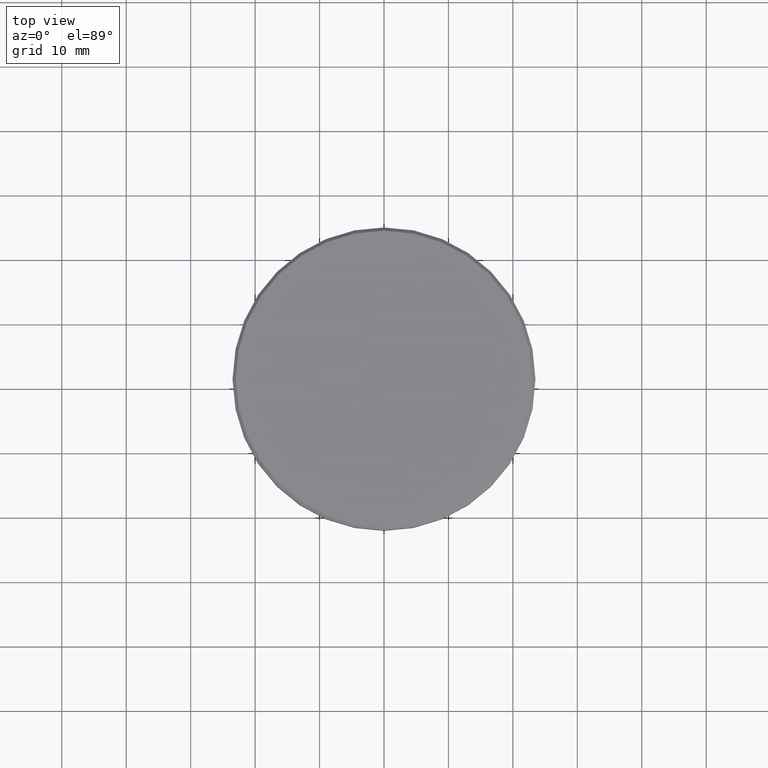
[diagram: clean part render]
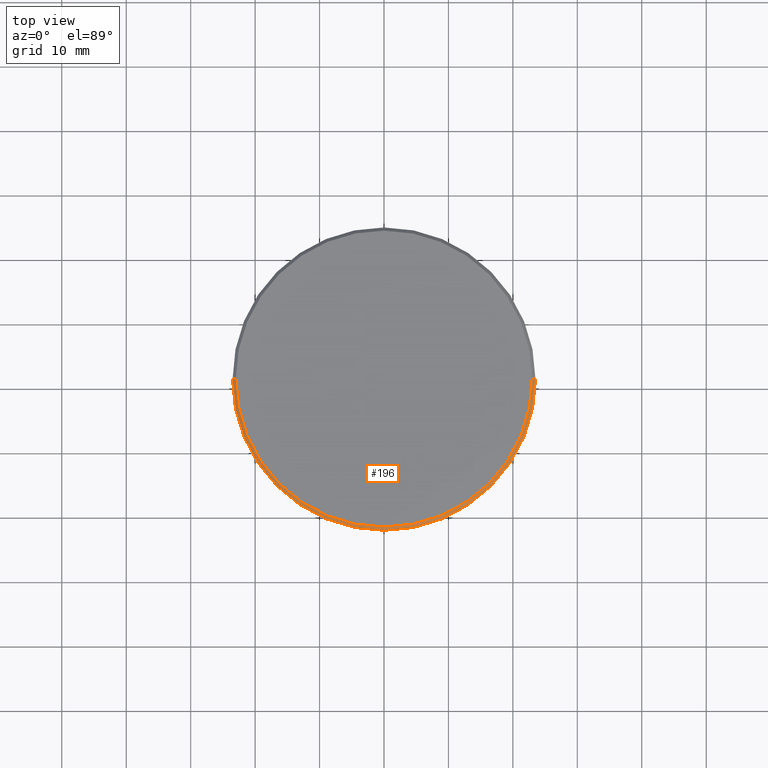
[diagram: same view with one face highlighted and labeled with its STEP entity id]
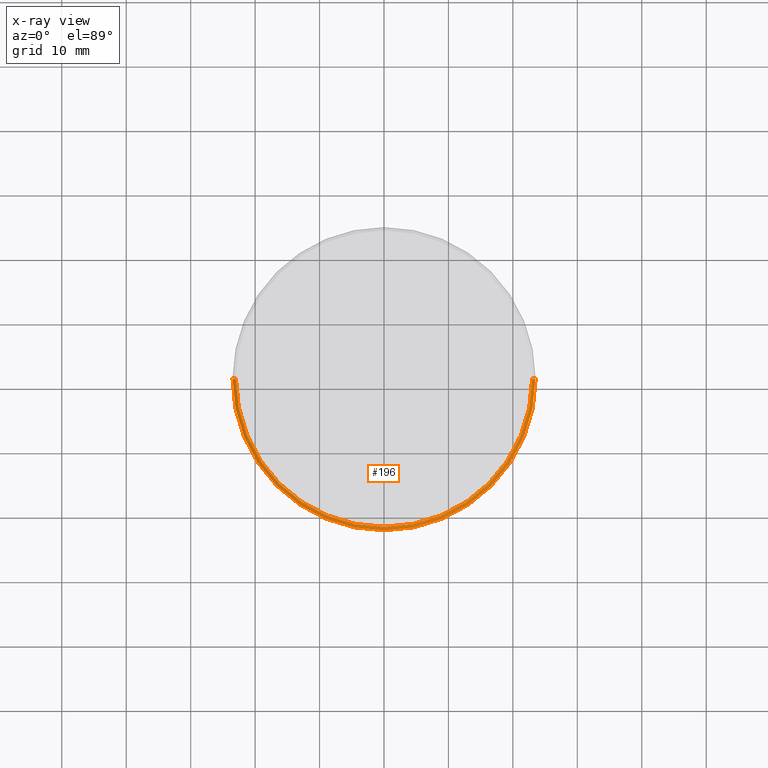
[diagram: x-ray of the same camera — body ghosted, the highlighted face saturated]
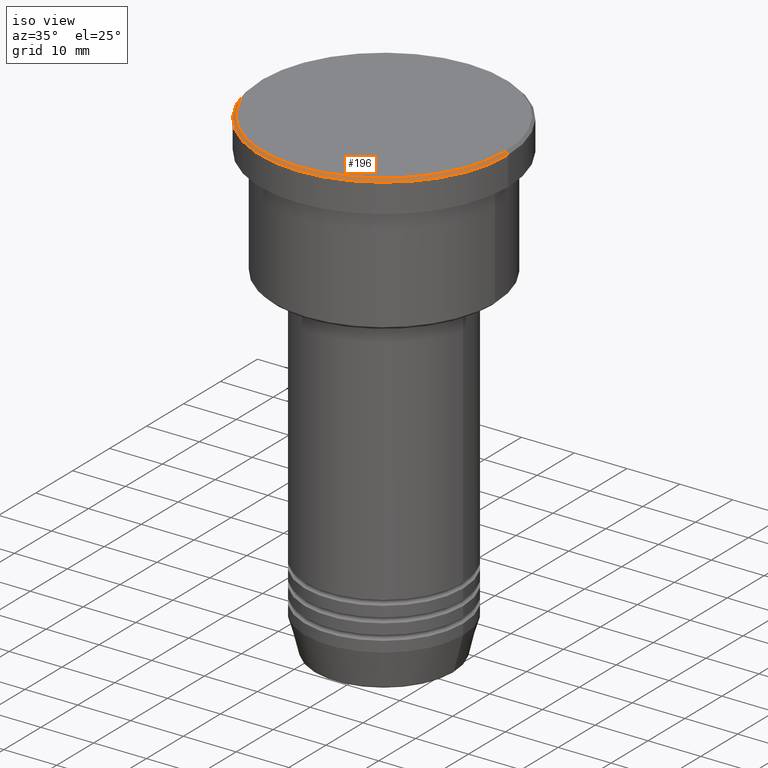
[diagram: same view with one face highlighted and labeled with its STEP entity id]
A machine part, top view. The second image highlights one B-rep face of the part: STEP entity #196.
The next image is the same camera in x-ray: the body ghosted, the highlighted face saturated — about 0% of this face is hidden behind the body in this view.
A second angle (iso view) of the same face is appended — the face is thin or edge-on in the first view.
In plain terms, the highlighted conical surface has half-angle 45 deg.
Its self-contained STEP definition (entity closure, byte-faithful):
#69 = DIRECTION ( 'NONE',  ( 0.7071067811865302533, 8.659560562354722084E-17, -0.7071067811865647812 ) ) ;
#84 = EDGE_LOOP ( 'NONE', ( #945, #280, #954, #723 ) ) ;
#137 = CARTESIAN_POINT ( 'NONE',  ( 0.000000000000000000, 0.000000000000000000, 0.000000000000000000 ) ) ;
#196 = ADVANCED_FACE ( 'NONE', ( #383 ), #642, .T. ) ;
#224 = DIRECTION ( 'NONE',  ( -0.7071067811865302533, 0.000000000000000000, -0.7071067811865647812 ) ) ;
#280 = ORIENTED_EDGE ( 'NONE', *, *, #1015, .F. ) ;
#294 = CARTESIAN_POINT ( 'NONE',  ( 0.000000000000000000, 0.000000000000000000, 0.000000000000000000 ) ) ;
#352 = DIRECTION ( 'NONE',  ( 1.000000000000000000, 0.000000000000000000, 0.000000000000000000 ) ) ;
#362 = CARTESIAN_POINT ( 'NONE',  ( -23.00000000000003908, 0.000000000000000000, 0.000000000000000000 ) ) ;
#371 = CARTESIAN_POINT ( 'NONE',  ( -23.50000000000000000, 2.877919977996280320E-15, -0.4999999999999865663 ) ) ;
#383 = FACE_OUTER_BOUND ( 'NONE', #84, .T. ) ;
#459 = EDGE_CURVE ( 'NONE', #510, #484, #557, .T. ) ;
#464 = DIRECTION ( 'NONE',  ( 0.000000000000000000, 0.000000000000000000, -1.000000000000000000 ) ) ;
#484 = VERTEX_POINT ( 'NONE', #371 ) ;
#510 = VERTEX_POINT ( 'NONE', #1069 ) ;
#516 = AXIS2_PLACEMENT_3D ( 'NONE', #294, #1141, #672 ) ;
#545 = VERTEX_POINT ( 'NONE', #362 ) ;
#557 = CIRCLE ( 'NONE', #643, 23.50000000000000000 ) ;
#573 = AXIS2_PLACEMENT_3D ( 'NONE', #137, #601, #961 ) ;
#601 = DIRECTION ( 'NONE',  ( -0.000000000000000000, -0.000000000000000000, 1.000000000000000000 ) ) ;
#642 = CONICAL_SURFACE ( 'NONE', #516, 23.00000000000003908, 0.7853981633974239651 ) ;
#643 = AXIS2_PLACEMENT_3D ( 'NONE', #808, #464, #352 ) ;
#672 = DIRECTION ( 'NONE',  ( -1.000000000000000000, 0.000000000000000000, 0.000000000000000000 ) ) ;
#723 = ORIENTED_EDGE ( 'NONE', *, *, #459, .F. ) ;
#747 = VECTOR ( 'NONE', #224, 1000.000000000000114 ) ;
#808 = CARTESIAN_POINT ( 'NONE',  ( 0.000000000000000000, 0.000000000000000000, -0.4999999999999865663 ) ) ;
#810 = CARTESIAN_POINT ( 'NONE',  ( 23.00000000000003908, 2.816687638038917085E-15, 0.000000000000000000 ) ) ;
#824 = CARTESIAN_POINT ( 'NONE',  ( 23.00000000000003908, 2.847303808017598505E-15, 0.000000000000000000 ) ) ;
#830 = EDGE_CURVE ( 'NONE', #1078, #510, #1168, .T. ) ;
#920 = VECTOR ( 'NONE', #69, 1000.000000000000114 ) ;
#945 = ORIENTED_EDGE ( 'NONE', *, *, #830, .F. ) ;
#952 = CARTESIAN_POINT ( 'NONE',  ( -23.00000000000003908, 0.000000000000000000, 0.000000000000000000 ) ) ;
#954 = ORIENTED_EDGE ( 'NONE', *, *, #1013, .T. ) ;
#961 = DIRECTION ( 'NONE',  ( 1.000000000000000000, 0.000000000000000000, 0.000000000000000000 ) ) ;
#1013 = EDGE_CURVE ( 'NONE', #545, #484, #1132, .T. ) ;
#1015 = EDGE_CURVE ( 'NONE', #545, #1078, #1171, .T. ) ;
#1069 = CARTESIAN_POINT ( 'NONE',  ( 23.50000000000000000, 0.000000000000000000, -0.4999999999999865663 ) ) ;
#1078 = VERTEX_POINT ( 'NONE', #824 ) ;
#1132 = LINE ( 'NONE', #952, #747 ) ;
#1141 = DIRECTION ( 'NONE',  ( 0.000000000000000000, 0.000000000000000000, -1.000000000000000000 ) ) ;
#1168 = LINE ( 'NONE', #810, #920 ) ;
#1171 = CIRCLE ( 'NONE', #573, 23.00000000000003908 ) ;